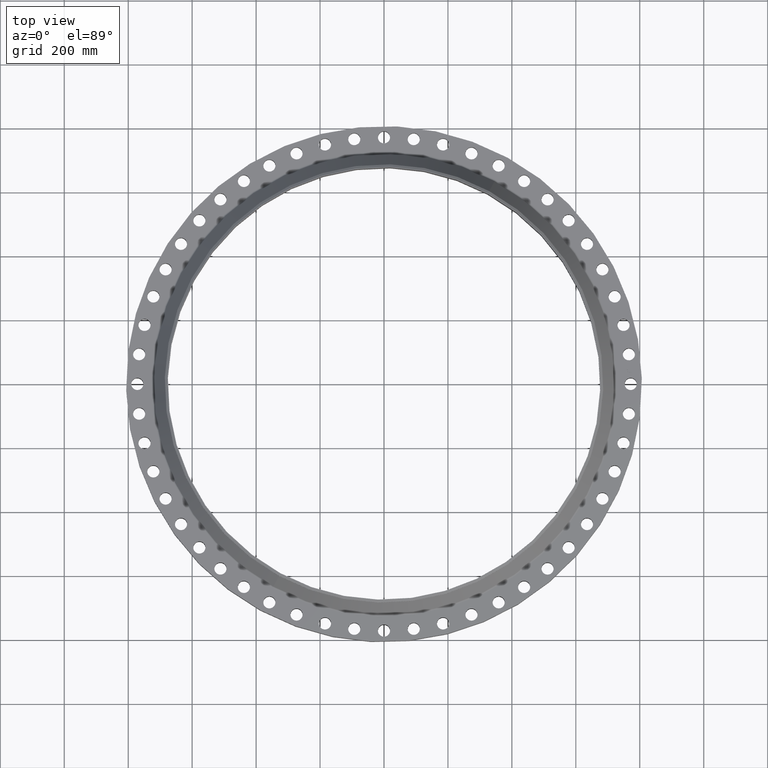
[diagram: clean part render]
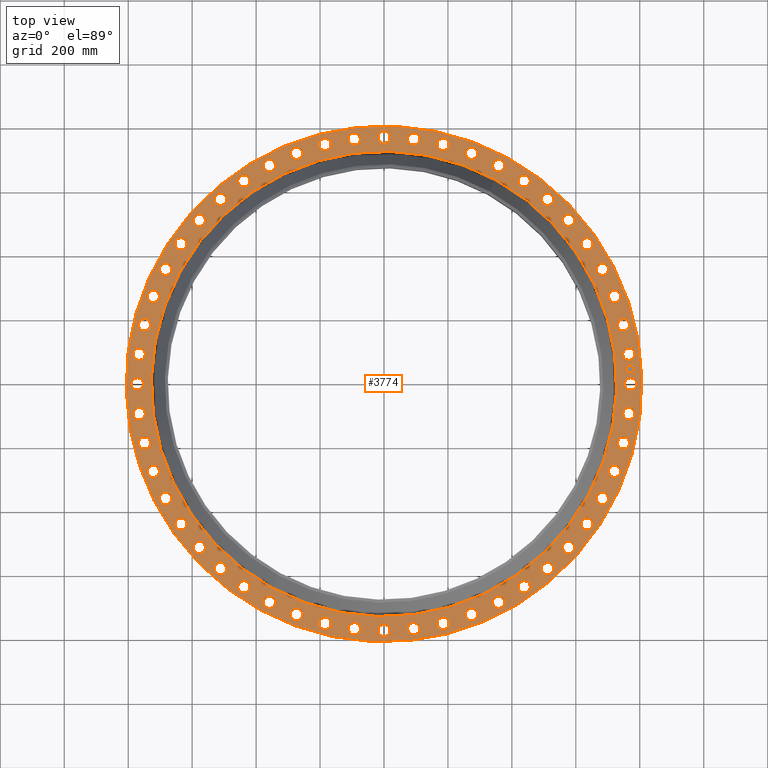
[diagram: same view with one face highlighted and labeled with its STEP entity id]
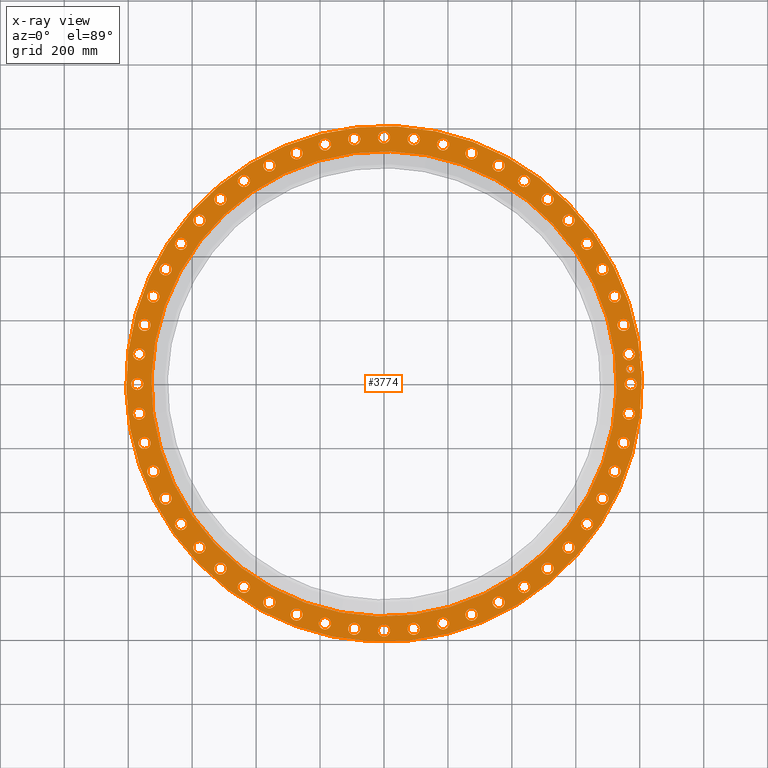
[diagram: x-ray of the same camera — body ghosted, the highlighted face saturated]
A machine part, top view. The second image highlights one B-rep face of the part: STEP entity #3774.
The next image is the same camera in x-ray: the body ghosted, the highlighted face saturated — about 0% of this face is hidden behind the body in this view.
In plain terms, the highlighted planar face has unit normal (0, 0, -1).
Its self-contained STEP definition (entity closure, byte-faithful):
#65=AXIS2_PLACEMENT_3D('Circle Axis2P3D',#63,#64,$) ;
#82=AXIS2_PLACEMENT_3D('Circle Axis2P3D',#80,#81,$) ;
#115=AXIS2_PLACEMENT_3D('Circle Axis2P3D',#113,#114,$) ;
#139=AXIS2_PLACEMENT_3D('Circle Axis2P3D',#137,#138,$) ;
#156=AXIS2_PLACEMENT_3D('Circle Axis2P3D',#154,#155,$) ;
#191=AXIS2_PLACEMENT_3D('Circle Axis2P3D',#189,#190,$) ;
#1363=AXIS2_PLACEMENT_3D('Circle Axis2P3D',#1361,#1362,$) ;
#1375=AXIS2_PLACEMENT_3D('Circle Axis2P3D',#1373,#1374,$) ;
#1406=AXIS2_PLACEMENT_3D('Circle Axis2P3D',#1404,#1405,$) ;
#1418=AXIS2_PLACEMENT_3D('Circle Axis2P3D',#1416,#1417,$) ;
#1449=AXIS2_PLACEMENT_3D('Circle Axis2P3D',#1447,#1448,$) ;
#1461=AXIS2_PLACEMENT_3D('Circle Axis2P3D',#1459,#1460,$) ;
#1492=AXIS2_PLACEMENT_3D('Circle Axis2P3D',#1490,#1491,$) ;
#1504=AXIS2_PLACEMENT_3D('Circle Axis2P3D',#1502,#1503,$) ;
#1535=AXIS2_PLACEMENT_3D('Circle Axis2P3D',#1533,#1534,$) ;
#1547=AXIS2_PLACEMENT_3D('Circle Axis2P3D',#1545,#1546,$) ;
#1578=AXIS2_PLACEMENT_3D('Circle Axis2P3D',#1576,#1577,$) ;
#1590=AXIS2_PLACEMENT_3D('Circle Axis2P3D',#1588,#1589,$) ;
#1621=AXIS2_PLACEMENT_3D('Circle Axis2P3D',#1619,#1620,$) ;
#1633=AXIS2_PLACEMENT_3D('Circle Axis2P3D',#1631,#1632,$) ;
#1664=AXIS2_PLACEMENT_3D('Circle Axis2P3D',#1662,#1663,$) ;
#1676=AXIS2_PLACEMENT_3D('Circle Axis2P3D',#1674,#1675,$) ;
#1707=AXIS2_PLACEMENT_3D('Circle Axis2P3D',#1705,#1706,$) ;
#1719=AXIS2_PLACEMENT_3D('Circle Axis2P3D',#1717,#1718,$) ;
#1750=AXIS2_PLACEMENT_3D('Circle Axis2P3D',#1748,#1749,$) ;
#1762=AXIS2_PLACEMENT_3D('Circle Axis2P3D',#1760,#1761,$) ;
#1793=AXIS2_PLACEMENT_3D('Circle Axis2P3D',#1791,#1792,$) ;
#1805=AXIS2_PLACEMENT_3D('Circle Axis2P3D',#1803,#1804,$) ;
#1836=AXIS2_PLACEMENT_3D('Circle Axis2P3D',#1834,#1835,$) ;
#1848=AXIS2_PLACEMENT_3D('Circle Axis2P3D',#1846,#1847,$) ;
#1879=AXIS2_PLACEMENT_3D('Circle Axis2P3D',#1877,#1878,$) ;
#1891=AXIS2_PLACEMENT_3D('Circle Axis2P3D',#1889,#1890,$) ;
#1922=AXIS2_PLACEMENT_3D('Circle Axis2P3D',#1920,#1921,$) ;
#1934=AXIS2_PLACEMENT_3D('Circle Axis2P3D',#1932,#1933,$) ;
#1965=AXIS2_PLACEMENT_3D('Circle Axis2P3D',#1963,#1964,$) ;
#1977=AXIS2_PLACEMENT_3D('Circle Axis2P3D',#1975,#1976,$) ;
#2008=AXIS2_PLACEMENT_3D('Circle Axis2P3D',#2006,#2007,$) ;
#2020=AXIS2_PLACEMENT_3D('Circle Axis2P3D',#2018,#2019,$) ;
#2051=AXIS2_PLACEMENT_3D('Circle Axis2P3D',#2049,#2050,$) ;
#2063=AXIS2_PLACEMENT_3D('Circle Axis2P3D',#2061,#2062,$) ;
#2094=AXIS2_PLACEMENT_3D('Circle Axis2P3D',#2092,#2093,$) ;
#2106=AXIS2_PLACEMENT_3D('Circle Axis2P3D',#2104,#2105,$) ;
#2137=AXIS2_PLACEMENT_3D('Circle Axis2P3D',#2135,#2136,$) ;
#2149=AXIS2_PLACEMENT_3D('Circle Axis2P3D',#2147,#2148,$) ;
#2180=AXIS2_PLACEMENT_3D('Circle Axis2P3D',#2178,#2179,$) ;
#2192=AXIS2_PLACEMENT_3D('Circle Axis2P3D',#2190,#2191,$) ;
#2223=AXIS2_PLACEMENT_3D('Circle Axis2P3D',#2221,#2222,$) ;
#2235=AXIS2_PLACEMENT_3D('Circle Axis2P3D',#2233,#2234,$) ;
#2266=AXIS2_PLACEMENT_3D('Circle Axis2P3D',#2264,#2265,$) ;
#2278=AXIS2_PLACEMENT_3D('Circle Axis2P3D',#2276,#2277,$) ;
#2309=AXIS2_PLACEMENT_3D('Circle Axis2P3D',#2307,#2308,$) ;
#2321=AXIS2_PLACEMENT_3D('Circle Axis2P3D',#2319,#2320,$) ;
#2352=AXIS2_PLACEMENT_3D('Circle Axis2P3D',#2350,#2351,$) ;
#2364=AXIS2_PLACEMENT_3D('Circle Axis2P3D',#2362,#2363,$) ;
#2395=AXIS2_PLACEMENT_3D('Circle Axis2P3D',#2393,#2394,$) ;
#2407=AXIS2_PLACEMENT_3D('Circle Axis2P3D',#2405,#2406,$) ;
#2438=AXIS2_PLACEMENT_3D('Circle Axis2P3D',#2436,#2437,$) ;
#2450=AXIS2_PLACEMENT_3D('Circle Axis2P3D',#2448,#2449,$) ;
#2481=AXIS2_PLACEMENT_3D('Circle Axis2P3D',#2479,#2480,$) ;
#2493=AXIS2_PLACEMENT_3D('Circle Axis2P3D',#2491,#2492,$) ;
#2524=AXIS2_PLACEMENT_3D('Circle Axis2P3D',#2522,#2523,$) ;
#2536=AXIS2_PLACEMENT_3D('Circle Axis2P3D',#2534,#2535,$) ;
#2567=AXIS2_PLACEMENT_3D('Circle Axis2P3D',#2565,#2566,$) ;
#2579=AXIS2_PLACEMENT_3D('Circle Axis2P3D',#2577,#2578,$) ;
#2610=AXIS2_PLACEMENT_3D('Circle Axis2P3D',#2608,#2609,$) ;
#2622=AXIS2_PLACEMENT_3D('Circle Axis2P3D',#2620,#2621,$) ;
#2653=AXIS2_PLACEMENT_3D('Circle Axis2P3D',#2651,#2652,$) ;
#2665=AXIS2_PLACEMENT_3D('Circle Axis2P3D',#2663,#2664,$) ;
#2696=AXIS2_PLACEMENT_3D('Circle Axis2P3D',#2694,#2695,$) ;
#2708=AXIS2_PLACEMENT_3D('Circle Axis2P3D',#2706,#2707,$) ;
#2739=AXIS2_PLACEMENT_3D('Circle Axis2P3D',#2737,#2738,$) ;
#2751=AXIS2_PLACEMENT_3D('Circle Axis2P3D',#2749,#2750,$) ;
#2782=AXIS2_PLACEMENT_3D('Circle Axis2P3D',#2780,#2781,$) ;
#2794=AXIS2_PLACEMENT_3D('Circle Axis2P3D',#2792,#2793,$) ;
#2825=AXIS2_PLACEMENT_3D('Circle Axis2P3D',#2823,#2824,$) ;
#2837=AXIS2_PLACEMENT_3D('Circle Axis2P3D',#2835,#2836,$) ;
#2868=AXIS2_PLACEMENT_3D('Circle Axis2P3D',#2866,#2867,$) ;
#2880=AXIS2_PLACEMENT_3D('Circle Axis2P3D',#2878,#2879,$) ;
#2911=AXIS2_PLACEMENT_3D('Circle Axis2P3D',#2909,#2910,$) ;
#2923=AXIS2_PLACEMENT_3D('Circle Axis2P3D',#2921,#2922,$) ;
#2954=AXIS2_PLACEMENT_3D('Circle Axis2P3D',#2952,#2953,$) ;
#2966=AXIS2_PLACEMENT_3D('Circle Axis2P3D',#2964,#2965,$) ;
#2997=AXIS2_PLACEMENT_3D('Circle Axis2P3D',#2995,#2996,$) ;
#3009=AXIS2_PLACEMENT_3D('Circle Axis2P3D',#3007,#3008,$) ;
#3040=AXIS2_PLACEMENT_3D('Circle Axis2P3D',#3038,#3039,$) ;
#3052=AXIS2_PLACEMENT_3D('Circle Axis2P3D',#3050,#3051,$) ;
#3083=AXIS2_PLACEMENT_3D('Circle Axis2P3D',#3081,#3082,$) ;
#3095=AXIS2_PLACEMENT_3D('Circle Axis2P3D',#3093,#3094,$) ;
#3126=AXIS2_PLACEMENT_3D('Circle Axis2P3D',#3124,#3125,$) ;
#3138=AXIS2_PLACEMENT_3D('Circle Axis2P3D',#3136,#3137,$) ;
#3169=AXIS2_PLACEMENT_3D('Circle Axis2P3D',#3167,#3168,$) ;
#3181=AXIS2_PLACEMENT_3D('Circle Axis2P3D',#3179,#3180,$) ;
#3212=AXIS2_PLACEMENT_3D('Circle Axis2P3D',#3210,#3211,$) ;
#3224=AXIS2_PLACEMENT_3D('Circle Axis2P3D',#3222,#3223,$) ;
#3255=AXIS2_PLACEMENT_3D('Circle Axis2P3D',#3253,#3254,$) ;
#3267=AXIS2_PLACEMENT_3D('Circle Axis2P3D',#3265,#3266,$) ;
#3298=AXIS2_PLACEMENT_3D('Circle Axis2P3D',#3296,#3297,$) ;
#3310=AXIS2_PLACEMENT_3D('Circle Axis2P3D',#3308,#3309,$) ;
#3341=AXIS2_PLACEMENT_3D('Circle Axis2P3D',#3339,#3340,$) ;
#3353=AXIS2_PLACEMENT_3D('Circle Axis2P3D',#3351,#3352,$) ;
#3384=AXIS2_PLACEMENT_3D('Circle Axis2P3D',#3382,#3383,$) ;
#3396=AXIS2_PLACEMENT_3D('Circle Axis2P3D',#3394,#3395,$) ;
#3427=AXIS2_PLACEMENT_3D('Circle Axis2P3D',#3425,#3426,$) ;
#3439=AXIS2_PLACEMENT_3D('Circle Axis2P3D',#3437,#3438,$) ;
#3470=AXIS2_PLACEMENT_3D('Circle Axis2P3D',#3468,#3469,$) ;
#3482=AXIS2_PLACEMENT_3D('Circle Axis2P3D',#3480,#3481,$) ;
#3513=AXIS2_PLACEMENT_3D('Circle Axis2P3D',#3511,#3512,$) ;
#3525=AXIS2_PLACEMENT_3D('Circle Axis2P3D',#3523,#3524,$) ;
#3538=AXIS2_PLACEMENT_3D('Plane Axis2P3D',#3535,#3536,#3537) ;
#3758=AXIS2_PLACEMENT_3D('Circle Axis2P3D',#3756,#3757,$) ;
#3767=AXIS2_PLACEMENT_3D('Circle Axis2P3D',#3765,#3766,$) ;
#46=CARTESIAN_POINT('Vertex',(29.7168130787,0.359569153955,4.50000000002)) ;
#60=CARTESIAN_POINT('Vertex',(31.0331869215,-0.359569153955,4.50000000002)) ;
#63=CARTESIAN_POINT('Axis2P3D Location',(30.3750000001,0.,4.50000000002)) ;
#80=CARTESIAN_POINT('Axis2P3D Location',(30.3750000001,0.,4.50000000002)) ;
#110=CARTESIAN_POINT('Vertex',(-15.2217608507,-27.8632463401,4.50000000002)) ;
#113=CARTESIAN_POINT('Axis2P3D Location',(0.,0.,4.50000000002)) ;
#117=CARTESIAN_POINT('Vertex',(15.2217608507,27.8632463401,4.50000000002)) ;
#137=CARTESIAN_POINT('Axis2P3D Location',(0.,0.,4.50000000002)) ;
#154=CARTESIAN_POINT('Axis2P3D Location',(0.,0.,4.50000000002)) ;
#158=CARTESIAN_POINT('Vertex',(13.7350741192,25.1418845319,4.50000000002)) ;
#160=CARTESIAN_POINT('Vertex',(-13.7350741192,-25.1418845319,4.50000000002)) ;
#189=CARTESIAN_POINT('Axis2P3D Location',(0.,0.,4.50000000002)) ;
#1351=CARTESIAN_POINT('Vertex',(-29.5434853253,3.22501850629,4.50000000002)) ;
#1358=CARTESIAN_POINT('Vertex',(-30.7635787764,4.09758481925,4.50000000002)) ;
#1361=CARTESIAN_POINT('Axis2P3D Location',(-30.1535320508,3.66130166277,4.50000000002)) ;
#1373=CARTESIAN_POINT('Axis2P3D Location',(-30.1535320508,3.66130166277,4.50000000002)) ;
#1394=CARTESIAN_POINT('Vertex',(28.9393470297,-6.76257813461,4.50000000002)) ;
#1401=CARTESIAN_POINT('Vertex',(30.0453683792,-7.77584847092,4.50000000002)) ;
#1404=CARTESIAN_POINT('Axis2P3D Location',(29.4923577044,-7.26921330276,4.50000000002)) ;
#1416=CARTESIAN_POINT('Axis2P3D Location',(29.4923577044,-7.26921330276,4.50000000002)) ;
#1437=CARTESIAN_POINT('Vertex',(-28.9393470297,6.76257813461,4.50000000002)) ;
#1444=CARTESIAN_POINT('Vertex',(-30.0453683792,7.77584847092,4.50000000002)) ;
#1447=CARTESIAN_POINT('Axis2P3D Location',(-29.4923577044,7.26921330276,4.50000000002)) ;
#1459=CARTESIAN_POINT('Axis2P3D Location',(-29.4923577044,7.26921330276,4.50000000002)) ;
#1480=CARTESIAN_POINT('Vertex',(27.9132078887,-10.2015241457,4.50000000002)) ;
#1487=CARTESIAN_POINT('Vertex',(28.8890288547,-11.3407227422,4.50000000002)) ;
#1490=CARTESIAN_POINT('Axis2P3D Location',(28.4011183717,-10.771123444,4.50000000002)) ;
#1502=CARTESIAN_POINT('Axis2P3D Location',(28.4011183717,-10.771123444,4.50000000002)) ;
#1523=CARTESIAN_POINT('Vertex',(-27.9132078887,10.2015241457,4.50000000002)) ;
#1530=CARTESIAN_POINT('Vertex',(-28.8890288547,11.3407227422,4.50000000002)) ;
#1533=CARTESIAN_POINT('Axis2P3D Location',(-28.4011183717,10.771123444,4.50000000002)) ;
#1545=CARTESIAN_POINT('Axis2P3D Location',(-28.4011183717,10.771123444,4.50000000002)) ;
#1566=CARTESIAN_POINT('Vertex',(26.4800313215,-13.491708963,4.50000000002)) ;
#1573=CARTESIAN_POINT('Vertex',(27.3114222371,-14.7402237388,4.50000000002)) ;
#1576=CARTESIAN_POINT('Axis2P3D Location',(26.8957267793,-14.1159663509,4.50000000002)) ;
#1588=CARTESIAN_POINT('Axis2P3D Location',(26.8957267793,-14.1159663509,4.50000000002)) ;
#1609=CARTESIAN_POINT('Vertex',(-26.4800313215,13.491708963,4.50000000002)) ;
#1616=CARTESIAN_POINT('Vertex',(-27.3114222371,14.7402237388,4.50000000002)) ;
#1619=CARTESIAN_POINT('Axis2P3D Location',(-26.8957267793,14.1159663509,4.50000000002)) ;
#1631=CARTESIAN_POINT('Axis2P3D Location',(-26.8957267793,14.1159663509,4.50000000002)) ;
#1652=CARTESIAN_POINT('Vertex',(24.6607162699,-16.5851542828,4.50000000002)) ;
#1659=CARTESIAN_POINT('Vertex',(25.3355535833,-17.9247790812,4.50000000002)) ;
#1662=CARTESIAN_POINT('Axis2P3D Location',(24.9981349266,-17.254966682,4.50000000002)) ;
#1674=CARTESIAN_POINT('Axis2P3D Location',(24.9981349266,-17.254966682,4.50000000002)) ;
#1695=CARTESIAN_POINT('Vertex',(-24.6607162699,16.5851542828,4.50000000002)) ;
#1702=CARTESIAN_POINT('Vertex',(-25.3355535833,17.9247790812,4.50000000002)) ;
#1705=CARTESIAN_POINT('Axis2P3D Location',(-24.9981349266,17.254966682,4.50000000002)) ;
#1717=CARTESIAN_POINT('Axis2P3D Location',(-24.9981349266,17.254966682,4.50000000002)) ;
#1738=CARTESIAN_POINT('Vertex',(22.481792444,-19.4367507067,4.50000000002)) ;
#1745=CARTESIAN_POINT('Vertex',(22.9902355076,-20.8479507815,4.50000000002)) ;
#1748=CARTESIAN_POINT('Axis2P3D Location',(22.7360139758,-20.1423507441,4.50000000002)) ;
#1760=CARTESIAN_POINT('Axis2P3D Location',(22.7360139758,-20.1423507441,4.50000000002)) ;
#1781=CARTESIAN_POINT('Vertex',(-22.481792444,19.4367507067,4.50000000002)) ;
#1788=CARTESIAN_POINT('Vertex',(-22.9902355076,20.8479507815,4.50000000002)) ;
#1791=CARTESIAN_POINT('Axis2P3D Location',(-22.7360139758,20.1423507441,4.50000000002)) ;
#1803=CARTESIAN_POINT('Axis2P3D Location',(-22.7360139758,20.1423507441,4.50000000002)) ;
#1824=CARTESIAN_POINT('Vertex',(19.9750334596,-22.0049155376,4.50000000002)) ;
#1831=CARTESIAN_POINT('Vertex',(20.3096680287,-23.467112414,4.50000000002)) ;
#1834=CARTESIAN_POINT('Axis2P3D Location',(20.1423507441,-22.7360139758,4.50000000002)) ;
#1846=CARTESIAN_POINT('Axis2P3D Location',(20.1423507441,-22.7360139758,4.50000000002)) ;
#1867=CARTESIAN_POINT('Vertex',(-19.9750334596,22.0049155376,4.50000000002)) ;
#1874=CARTESIAN_POINT('Vertex',(-20.3096680287,23.467112414,4.50000000002)) ;
#1877=CARTESIAN_POINT('Axis2P3D Location',(-20.1423507441,22.7360139758,4.50000000002)) ;
#1889=CARTESIAN_POINT('Axis2P3D Location',(-20.1423507441,22.7360139758,4.50000000002)) ;
#1910=CARTESIAN_POINT('Vertex',(17.1769935076,-24.2521991492,4.50000000002)) ;
#1917=CARTESIAN_POINT('Vertex',(17.3329398565,-25.7440707041,4.50000000002)) ;
#1920=CARTESIAN_POINT('Axis2P3D Location',(17.254966682,-24.9981349266,4.50000000002)) ;
#1932=CARTESIAN_POINT('Axis2P3D Location',(17.254966682,-24.9981349266,4.50000000002)) ;
#1953=CARTESIAN_POINT('Vertex',(-17.1769935076,24.2521991492,4.50000000002)) ;
#1960=CARTESIAN_POINT('Vertex',(-17.3329398565,25.7440707041,4.50000000002)) ;
#1963=CARTESIAN_POINT('Axis2P3D Location',(-17.254966682,24.9981349266,4.50000000002)) ;
#1975=CARTESIAN_POINT('Axis2P3D Location',(-17.254966682,24.9981349266,4.50000000002)) ;
#1996=CARTESIAN_POINT('Vertex',(14.128474311,-26.145831086,4.50000000002)) ;
#2003=CARTESIAN_POINT('Vertex',(14.1034583908,-27.6456224727,4.50000000002)) ;
#2006=CARTESIAN_POINT('Axis2P3D Location',(14.1159663509,-26.8957267793,4.50000000002)) ;
#2018=CARTESIAN_POINT('Axis2P3D Location',(14.1159663509,-26.8957267793,4.50000000002)) ;
#2039=CARTESIAN_POINT('Vertex',(-14.128474311,26.145831086,4.50000000002)) ;
#2046=CARTESIAN_POINT('Vertex',(-14.1034583908,27.6456224727,4.50000000002)) ;
#2049=CARTESIAN_POINT('Axis2P3D Location',(-14.1159663509,26.8957267793,4.50000000002)) ;
#2061=CARTESIAN_POINT('Axis2P3D Location',(-14.1159663509,26.8957267793,4.50000000002)) ;
#2082=CARTESIAN_POINT('Vertex',(10.8739301444,-27.6581979302,4.50000000002)) ;
#2089=CARTESIAN_POINT('Vertex',(10.6683167436,-29.1440388132,4.50000000002)) ;
#2092=CARTESIAN_POINT('Axis2P3D Location',(10.771123444,-28.4011183717,4.50000000002)) ;
#2104=CARTESIAN_POINT('Axis2P3D Location',(10.771123444,-28.4011183717,4.50000000002)) ;
#2125=CARTESIAN_POINT('Vertex',(-10.8739301444,27.6581979302,4.50000000002)) ;
#2132=CARTESIAN_POINT('Vertex',(-10.6683167436,29.1440388132,4.50000000002)) ;
#2135=CARTESIAN_POINT('Axis2P3D Location',(-10.771123444,28.4011183717,4.50000000002)) ;
#2147=CARTESIAN_POINT('Axis2P3D Location',(-10.771123444,28.4011183717,4.50000000002)) ;
#2168=CARTESIAN_POINT('Vertex',(7.46081959027,-28.7672459678,4.50000000002)) ;
#2175=CARTESIAN_POINT('Vertex',(7.07760701526,-30.2174694411,4.50000000002)) ;
#2178=CARTESIAN_POINT('Axis2P3D Location',(7.26921330276,-29.4923577044,4.50000000002)) ;
#2190=CARTESIAN_POINT('Axis2P3D Location',(7.26921330276,-29.4923577044,4.50000000002)) ;
#2211=CARTESIAN_POINT('Vertex',(-7.46081959027,28.7672459678,4.50000000002)) ;
#2218=CARTESIAN_POINT('Vertex',(-7.07760701526,30.2174694411,4.50000000002)) ;
#2221=CARTESIAN_POINT('Axis2P3D Location',(-7.26921330276,29.4923577044,4.50000000002)) ;
#2233=CARTESIAN_POINT('Axis2P3D Location',(-7.26921330276,29.4923577044,4.50000000002)) ;
#2254=CARTESIAN_POINT('Vertex',(3.93891348626,-29.456802781,4.50000000002)) ;
#2261=CARTESIAN_POINT('Vertex',(3.38368983928,-30.8502613207,4.50000000002)) ;
#2264=CARTESIAN_POINT('Axis2P3D Location',(3.66130166277,-30.1535320508,4.50000000002)) ;
#2276=CARTESIAN_POINT('Axis2P3D Location',(3.66130166277,-30.1535320508,4.50000000002)) ;
#2297=CARTESIAN_POINT('Vertex',(-3.93891348626,29.456802781,4.50000000002)) ;
#2304=CARTESIAN_POINT('Vertex',(-3.38368983928,30.8502613207,4.50000000002)) ;
#2307=CARTESIAN_POINT('Axis2P3D Location',(-3.66130166277,30.1535320508,4.50000000002)) ;
#2319=CARTESIAN_POINT('Axis2P3D Location',(-3.66130166277,30.1535320508,4.50000000002)) ;
#2340=CARTESIAN_POINT('Vertex',(0.359569153955,-29.7168130787,4.50000000002)) ;
#2347=CARTESIAN_POINT('Vertex',(-0.359569153955,-31.0331869215,4.50000000002)) ;
#2350=CARTESIAN_POINT('Axis2P3D Location',(8.60453720084E-015,-30.3750000001,4.50000000002)) ;
#2362=CARTESIAN_POINT('Axis2P3D Location',(8.60453720084E-015,-30.3750000001,4.50000000002)) ;
#2383=CARTESIAN_POINT('Vertex',(-0.359569153955,29.7168130787,4.50000000002)) ;
#2390=CARTESIAN_POINT('Vertex',(0.359569153955,31.0331869215,4.50000000002)) ;
#2393=CARTESIAN_POINT('Axis2P3D Location',(-1.10393722582E-015,30.3750000001,4.50000000002)) ;
#2405=CARTESIAN_POINT('Axis2P3D Location',(-1.10393722582E-015,30.3750000001,4.50000000002)) ;
#2426=CARTESIAN_POINT('Vertex',(-3.22501850629,-29.5434853253,4.50000000002)) ;
#2433=CARTESIAN_POINT('Vertex',(-4.09758481925,-30.7635787764,4.50000000002)) ;
#2436=CARTESIAN_POINT('Axis2P3D Location',(-3.66130166277,-30.1535320508,4.50000000002)) ;
#2448=CARTESIAN_POINT('Axis2P3D Location',(-3.66130166277,-30.1535320508,4.50000000002)) ;
#2469=CARTESIAN_POINT('Vertex',(3.22501850629,29.5434853253,4.50000000002)) ;
#2476=CARTESIAN_POINT('Vertex',(4.09758481925,30.7635787764,4.50000000002)) ;
#2479=CARTESIAN_POINT('Axis2P3D Location',(3.66130166277,30.1535320508,4.50000000002)) ;
#2491=CARTESIAN_POINT('Axis2P3D Location',(3.66130166277,30.1535320508,4.50000000002)) ;
#2512=CARTESIAN_POINT('Vertex',(-6.76257813461,-28.9393470297,4.50000000002)) ;
#2519=CARTESIAN_POINT('Vertex',(-7.77584847092,-30.0453683792,4.50000000002)) ;
#2522=CARTESIAN_POINT('Axis2P3D Location',(-7.26921330276,-29.4923577044,4.50000000002)) ;
#2534=CARTESIAN_POINT('Axis2P3D Location',(-7.26921330276,-29.4923577044,4.50000000002)) ;
#2555=CARTESIAN_POINT('Vertex',(6.76257813461,28.9393470297,4.50000000002)) ;
#2562=CARTESIAN_POINT('Vertex',(7.77584847092,30.0453683792,4.50000000002)) ;
#2565=CARTESIAN_POINT('Axis2P3D Location',(7.26921330276,29.4923577044,4.50000000002)) ;
#2577=CARTESIAN_POINT('Axis2P3D Location',(7.26921330276,29.4923577044,4.50000000002)) ;
#2598=CARTESIAN_POINT('Vertex',(-10.2015241457,-27.9132078887,4.50000000002)) ;
#2605=CARTESIAN_POINT('Vertex',(-11.3407227422,-28.8890288547,4.50000000002)) ;
#2608=CARTESIAN_POINT('Axis2P3D Location',(-10.771123444,-28.4011183717,4.50000000002)) ;
#2620=CARTESIAN_POINT('Axis2P3D Location',(-10.771123444,-28.4011183717,4.50000000002)) ;
#2641=CARTESIAN_POINT('Vertex',(10.2015241457,27.9132078887,4.50000000002)) ;
#2648=CARTESIAN_POINT('Vertex',(11.3407227422,28.8890288547,4.50000000002)) ;
#2651=CARTESIAN_POINT('Axis2P3D Location',(10.771123444,28.4011183717,4.50000000002)) ;
#2663=CARTESIAN_POINT('Axis2P3D Location',(10.771123444,28.4011183717,4.50000000002)) ;
#2684=CARTESIAN_POINT('Vertex',(-13.491708963,-26.4800313215,4.50000000002)) ;
#2691=CARTESIAN_POINT('Vertex',(-14.7402237388,-27.3114222371,4.50000000002)) ;
#2694=CARTESIAN_POINT('Axis2P3D Location',(-14.1159663509,-26.8957267793,4.50000000002)) ;
#2706=CARTESIAN_POINT('Axis2P3D Location',(-14.1159663509,-26.8957267793,4.50000000002)) ;
#2727=CARTESIAN_POINT('Vertex',(13.491708963,26.4800313215,4.50000000002)) ;
#2734=CARTESIAN_POINT('Vertex',(14.7402237388,27.3114222371,4.50000000002)) ;
#2737=CARTESIAN_POINT('Axis2P3D Location',(14.1159663509,26.8957267793,4.50000000002)) ;
#2749=CARTESIAN_POINT('Axis2P3D Location',(14.1159663509,26.8957267793,4.50000000002)) ;
#2770=CARTESIAN_POINT('Vertex',(-16.5851542828,-24.6607162699,4.50000000002)) ;
#2777=CARTESIAN_POINT('Vertex',(-17.9247790812,-25.3355535833,4.50000000002)) ;
#2780=CARTESIAN_POINT('Axis2P3D Location',(-17.254966682,-24.9981349266,4.50000000002)) ;
#2792=CARTESIAN_POINT('Axis2P3D Location',(-17.254966682,-24.9981349266,4.50000000002)) ;
#2813=CARTESIAN_POINT('Vertex',(16.5851542828,24.6607162699,4.50000000002)) ;
#2820=CARTESIAN_POINT('Vertex',(17.9247790812,25.3355535833,4.50000000002)) ;
#2823=CARTESIAN_POINT('Axis2P3D Location',(17.254966682,24.9981349266,4.50000000002)) ;
#2835=CARTESIAN_POINT('Axis2P3D Location',(17.254966682,24.9981349266,4.50000000002)) ;
#2856=CARTESIAN_POINT('Vertex',(-19.4367507067,-22.481792444,4.50000000002)) ;
#2863=CARTESIAN_POINT('Vertex',(-20.8479507815,-22.9902355076,4.50000000002)) ;
#2866=CARTESIAN_POINT('Axis2P3D Location',(-20.1423507441,-22.7360139758,4.50000000002)) ;
#2878=CARTESIAN_POINT('Axis2P3D Location',(-20.1423507441,-22.7360139758,4.50000000002)) ;
#2899=CARTESIAN_POINT('Vertex',(19.4367507067,22.481792444,4.50000000002)) ;
#2906=CARTESIAN_POINT('Vertex',(20.8479507815,22.9902355076,4.50000000002)) ;
#2909=CARTESIAN_POINT('Axis2P3D Location',(20.1423507441,22.7360139758,4.50000000002)) ;
#2921=CARTESIAN_POINT('Axis2P3D Location',(20.1423507441,22.7360139758,4.50000000002)) ;
#2942=CARTESIAN_POINT('Vertex',(-22.0049155376,-19.9750334596,4.50000000002)) ;
#2949=CARTESIAN_POINT('Vertex',(-23.467112414,-20.3096680287,4.50000000002)) ;
#2952=CARTESIAN_POINT('Axis2P3D Location',(-22.7360139758,-20.1423507441,4.50000000002)) ;
#2964=CARTESIAN_POINT('Axis2P3D Location',(-22.7360139758,-20.1423507441,4.50000000002)) ;
#2985=CARTESIAN_POINT('Vertex',(22.0049155376,19.9750334596,4.50000000002)) ;
#2992=CARTESIAN_POINT('Vertex',(23.467112414,20.3096680287,4.50000000002)) ;
#2995=CARTESIAN_POINT('Axis2P3D Location',(22.7360139758,20.1423507441,4.50000000002)) ;
#3007=CARTESIAN_POINT('Axis2P3D Location',(22.7360139758,20.1423507441,4.50000000002)) ;
#3028=CARTESIAN_POINT('Vertex',(-24.2521991492,-17.1769935076,4.50000000002)) ;
#3035=CARTESIAN_POINT('Vertex',(-25.7440707041,-17.3329398565,4.50000000002)) ;
#3038=CARTESIAN_POINT('Axis2P3D Location',(-24.9981349266,-17.254966682,4.50000000002)) ;
#3050=CARTESIAN_POINT('Axis2P3D Location',(-24.9981349266,-17.254966682,4.50000000002)) ;
#3071=CARTESIAN_POINT('Vertex',(24.2521991492,17.1769935076,4.50000000002)) ;
#3078=CARTESIAN_POINT('Vertex',(25.7440707041,17.3329398565,4.50000000002)) ;
#3081=CARTESIAN_POINT('Axis2P3D Location',(24.9981349266,17.254966682,4.50000000002)) ;
#3093=CARTESIAN_POINT('Axis2P3D Location',(24.9981349266,17.254966682,4.50000000002)) ;
#3114=CARTESIAN_POINT('Vertex',(-26.145831086,-14.128474311,4.50000000002)) ;
#3121=CARTESIAN_POINT('Vertex',(-27.6456224727,-14.1034583908,4.50000000002)) ;
#3124=CARTESIAN_POINT('Axis2P3D Location',(-26.8957267793,-14.1159663509,4.50000000002)) ;
#3136=CARTESIAN_POINT('Axis2P3D Location',(-26.8957267793,-14.1159663509,4.50000000002)) ;
#3157=CARTESIAN_POINT('Vertex',(26.145831086,14.128474311,4.50000000002)) ;
#3164=CARTESIAN_POINT('Vertex',(27.6456224727,14.1034583908,4.50000000002)) ;
#3167=CARTESIAN_POINT('Axis2P3D Location',(26.8957267793,14.1159663509,4.50000000002)) ;
#3179=CARTESIAN_POINT('Axis2P3D Location',(26.8957267793,14.1159663509,4.50000000002)) ;
#3200=CARTESIAN_POINT('Vertex',(-27.6581979302,-10.8739301444,4.50000000002)) ;
#3207=CARTESIAN_POINT('Vertex',(-29.1440388132,-10.6683167436,4.50000000002)) ;
#3210=CARTESIAN_POINT('Axis2P3D Location',(-28.4011183717,-10.771123444,4.50000000002)) ;
#3222=CARTESIAN_POINT('Axis2P3D Location',(-28.4011183717,-10.771123444,4.50000000002)) ;
#3243=CARTESIAN_POINT('Vertex',(27.6581979302,10.8739301444,4.50000000002)) ;
#3250=CARTESIAN_POINT('Vertex',(29.1440388132,10.6683167436,4.50000000002)) ;
#3253=CARTESIAN_POINT('Axis2P3D Location',(28.4011183717,10.771123444,4.50000000002)) ;
#3265=CARTESIAN_POINT('Axis2P3D Location',(28.4011183717,10.771123444,4.50000000002)) ;
#3286=CARTESIAN_POINT('Vertex',(-28.7672459678,-7.46081959027,4.50000000002)) ;
#3293=CARTESIAN_POINT('Vertex',(-30.2174694411,-7.07760701526,4.50000000002)) ;
#3296=CARTESIAN_POINT('Axis2P3D Location',(-29.4923577044,-7.26921330276,4.50000000002)) ;
#3308=CARTESIAN_POINT('Axis2P3D Location',(-29.4923577044,-7.26921330276,4.50000000002)) ;
#3329=CARTESIAN_POINT('Vertex',(28.7672459678,7.46081959027,4.50000000002)) ;
#3336=CARTESIAN_POINT('Vertex',(30.2174694411,7.07760701526,4.50000000002)) ;
#3339=CARTESIAN_POINT('Axis2P3D Location',(29.4923577044,7.26921330276,4.50000000002)) ;
#3351=CARTESIAN_POINT('Axis2P3D Location',(29.4923577044,7.26921330276,4.50000000002)) ;
#3372=CARTESIAN_POINT('Vertex',(-29.456802781,-3.93891348626,4.50000000002)) ;
#3379=CARTESIAN_POINT('Vertex',(-30.8502613207,-3.38368983928,4.50000000002)) ;
#3382=CARTESIAN_POINT('Axis2P3D Location',(-30.1535320508,-3.66130166277,4.50000000002)) ;
#3394=CARTESIAN_POINT('Axis2P3D Location',(-30.1535320508,-3.66130166277,4.50000000002)) ;
#3415=CARTESIAN_POINT('Vertex',(29.456802781,3.93891348626,4.50000000002)) ;
#3422=CARTESIAN_POINT('Vertex',(30.8502613207,3.38368983928,4.50000000002)) ;
#3425=CARTESIAN_POINT('Axis2P3D Location',(30.1535320508,3.66130166277,4.50000000002)) ;
#3437=CARTESIAN_POINT('Axis2P3D Location',(30.1535320508,3.66130166277,4.50000000002)) ;
#3458=CARTESIAN_POINT('Vertex',(-29.7168130787,-0.359569153955,4.50000000002)) ;
#3465=CARTESIAN_POINT('Vertex',(-31.0331869215,0.359569153955,4.50000000002)) ;
#3468=CARTESIAN_POINT('Axis2P3D Location',(-30.3750000001,-1.72090744017E-014,4.50000000002)) ;
#3480=CARTESIAN_POINT('Axis2P3D Location',(-30.3750000001,-1.72090744017E-014,4.50000000002)) ;
#3501=CARTESIAN_POINT('Vertex',(29.5434853253,-3.22501850629,4.50000000002)) ;
#3508=CARTESIAN_POINT('Vertex',(30.7635787764,-4.09758481925,4.50000000002)) ;
#3511=CARTESIAN_POINT('Axis2P3D Location',(30.1535320508,-3.66130166277,4.50000000002)) ;
#3523=CARTESIAN_POINT('Axis2P3D Location',(30.1535320508,-3.66130166277,4.50000000002)) ;
#3535=CARTESIAN_POINT('Axis2P3D Location',(0.,31.7500000001,4.50000000002)) ;
#3756=CARTESIAN_POINT('Axis2P3D Location',(30.3195824597,1.83399685921,4.50000000002)) ;
#3760=CARTESIAN_POINT('Vertex',(30.2893932801,2.33308349241,4.50000000002)) ;
#3762=CARTESIAN_POINT('Vertex',(30.3497716392,1.33491022601,4.50000000002)) ;
#3765=CARTESIAN_POINT('Axis2P3D Location',(30.3195824597,1.83399685921,4.50000000002)) ;
#64=DIRECTION('Axis2P3D Direction',(0.,-0.,-0.0393700787402)) ;
#81=DIRECTION('Axis2P3D Direction',(0.,-0.,-0.0393700787402)) ;
#114=DIRECTION('Axis2P3D Direction',(0.,0.,-0.0393700787402)) ;
#138=DIRECTION('Axis2P3D Direction',(0.,0.,-0.0393700787402)) ;
#155=DIRECTION('Axis2P3D Direction',(0.,0.,-0.0393700787402)) ;
#190=DIRECTION('Axis2P3D Direction',(0.,0.,-0.0393700787402)) ;
#1362=DIRECTION('Axis2P3D Direction',(0.,0.,-0.0393700787402)) ;
#1374=DIRECTION('Axis2P3D Direction',(0.,0.,-0.0393700787402)) ;
#1405=DIRECTION('Axis2P3D Direction',(0.,-0.,-0.0393700787402)) ;
#1417=DIRECTION('Axis2P3D Direction',(0.,-0.,-0.0393700787402)) ;
#1448=DIRECTION('Axis2P3D Direction',(0.,0.,-0.0393700787402)) ;
#1460=DIRECTION('Axis2P3D Direction',(0.,0.,-0.0393700787402)) ;
#1491=DIRECTION('Axis2P3D Direction',(0.,-0.,-0.0393700787402)) ;
#1503=DIRECTION('Axis2P3D Direction',(0.,-0.,-0.0393700787402)) ;
#1534=DIRECTION('Axis2P3D Direction',(0.,0.,-0.0393700787402)) ;
#1546=DIRECTION('Axis2P3D Direction',(0.,0.,-0.0393700787402)) ;
#1577=DIRECTION('Axis2P3D Direction',(0.,-0.,-0.0393700787402)) ;
#1589=DIRECTION('Axis2P3D Direction',(0.,-0.,-0.0393700787402)) ;
#1620=DIRECTION('Axis2P3D Direction',(0.,0.,-0.0393700787402)) ;
#1632=DIRECTION('Axis2P3D Direction',(0.,0.,-0.0393700787402)) ;
#1663=DIRECTION('Axis2P3D Direction',(0.,-0.,-0.0393700787402)) ;
#1675=DIRECTION('Axis2P3D Direction',(0.,-0.,-0.0393700787402)) ;
#1706=DIRECTION('Axis2P3D Direction',(0.,0.,-0.0393700787402)) ;
#1718=DIRECTION('Axis2P3D Direction',(0.,0.,-0.0393700787402)) ;
#1749=DIRECTION('Axis2P3D Direction',(0.,-0.,-0.0393700787402)) ;
#1761=DIRECTION('Axis2P3D Direction',(0.,-0.,-0.0393700787402)) ;
#1792=DIRECTION('Axis2P3D Direction',(0.,0.,-0.0393700787402)) ;
#1804=DIRECTION('Axis2P3D Direction',(0.,0.,-0.0393700787402)) ;
#1835=DIRECTION('Axis2P3D Direction',(0.,-0.,-0.0393700787402)) ;
#1847=DIRECTION('Axis2P3D Direction',(0.,-0.,-0.0393700787402)) ;
#1878=DIRECTION('Axis2P3D Direction',(0.,0.,-0.0393700787402)) ;
#1890=DIRECTION('Axis2P3D Direction',(0.,0.,-0.0393700787402)) ;
#1921=DIRECTION('Axis2P3D Direction',(0.,-0.,-0.0393700787402)) ;
#1933=DIRECTION('Axis2P3D Direction',(0.,-0.,-0.0393700787402)) ;
#1964=DIRECTION('Axis2P3D Direction',(0.,0.,-0.0393700787402)) ;
#1976=DIRECTION('Axis2P3D Direction',(0.,0.,-0.0393700787402)) ;
#2007=DIRECTION('Axis2P3D Direction',(0.,-0.,-0.0393700787402)) ;
#2019=DIRECTION('Axis2P3D Direction',(0.,-0.,-0.0393700787402)) ;
#2050=DIRECTION('Axis2P3D Direction',(0.,0.,-0.0393700787402)) ;
#2062=DIRECTION('Axis2P3D Direction',(0.,0.,-0.0393700787402)) ;
#2093=DIRECTION('Axis2P3D Direction',(0.,-0.,-0.0393700787402)) ;
#2105=DIRECTION('Axis2P3D Direction',(0.,-0.,-0.0393700787402)) ;
#2136=DIRECTION('Axis2P3D Direction',(0.,0.,-0.0393700787402)) ;
#2148=DIRECTION('Axis2P3D Direction',(0.,0.,-0.0393700787402)) ;
#2179=DIRECTION('Axis2P3D Direction',(0.,-0.,-0.0393700787402)) ;
#2191=DIRECTION('Axis2P3D Direction',(0.,-0.,-0.0393700787402)) ;
#2222=DIRECTION('Axis2P3D Direction',(0.,0.,-0.0393700787402)) ;
#2234=DIRECTION('Axis2P3D Direction',(0.,0.,-0.0393700787402)) ;
#2265=DIRECTION('Axis2P3D Direction',(0.,-0.,-0.0393700787402)) ;
#2277=DIRECTION('Axis2P3D Direction',(0.,-0.,-0.0393700787402)) ;
#2308=DIRECTION('Axis2P3D Direction',(0.,0.,-0.0393700787402)) ;
#2320=DIRECTION('Axis2P3D Direction',(0.,0.,-0.0393700787402)) ;
#2351=DIRECTION('Axis2P3D Direction',(0.,-0.,-0.0393700787402)) ;
#2363=DIRECTION('Axis2P3D Direction',(0.,-0.,-0.0393700787402)) ;
#2394=DIRECTION('Axis2P3D Direction',(0.,0.,-0.0393700787402)) ;
#2406=DIRECTION('Axis2P3D Direction',(0.,0.,-0.0393700787402)) ;
#2437=DIRECTION('Axis2P3D Direction',(-0.,0.,-0.0393700787402)) ;
#2449=DIRECTION('Axis2P3D Direction',(-0.,0.,-0.0393700787402)) ;
#2480=DIRECTION('Axis2P3D Direction',(0.,0.,-0.0393700787402)) ;
#2492=DIRECTION('Axis2P3D Direction',(0.,0.,-0.0393700787402)) ;
#2523=DIRECTION('Axis2P3D Direction',(-0.,0.,-0.0393700787402)) ;
#2535=DIRECTION('Axis2P3D Direction',(-0.,0.,-0.0393700787402)) ;
#2566=DIRECTION('Axis2P3D Direction',(0.,0.,-0.0393700787402)) ;
#2578=DIRECTION('Axis2P3D Direction',(0.,0.,-0.0393700787402)) ;
#2609=DIRECTION('Axis2P3D Direction',(-0.,0.,-0.0393700787402)) ;
#2621=DIRECTION('Axis2P3D Direction',(-0.,0.,-0.0393700787402)) ;
#2652=DIRECTION('Axis2P3D Direction',(0.,0.,-0.0393700787402)) ;
#2664=DIRECTION('Axis2P3D Direction',(0.,0.,-0.0393700787402)) ;
#2695=DIRECTION('Axis2P3D Direction',(-0.,0.,-0.0393700787402)) ;
#2707=DIRECTION('Axis2P3D Direction',(-0.,0.,-0.0393700787402)) ;
#2738=DIRECTION('Axis2P3D Direction',(0.,0.,-0.0393700787402)) ;
#2750=DIRECTION('Axis2P3D Direction',(0.,0.,-0.0393700787402)) ;
#2781=DIRECTION('Axis2P3D Direction',(-0.,0.,-0.0393700787402)) ;
#2793=DIRECTION('Axis2P3D Direction',(-0.,0.,-0.0393700787402)) ;
#2824=DIRECTION('Axis2P3D Direction',(0.,0.,-0.0393700787402)) ;
#2836=DIRECTION('Axis2P3D Direction',(0.,0.,-0.0393700787402)) ;
#2867=DIRECTION('Axis2P3D Direction',(-0.,0.,-0.0393700787402)) ;
#2879=DIRECTION('Axis2P3D Direction',(-0.,0.,-0.0393700787402)) ;
#2910=DIRECTION('Axis2P3D Direction',(0.,0.,-0.0393700787402)) ;
#2922=DIRECTION('Axis2P3D Direction',(0.,0.,-0.0393700787402)) ;
#2953=DIRECTION('Axis2P3D Direction',(-0.,0.,-0.0393700787402)) ;
#2965=DIRECTION('Axis2P3D Direction',(-0.,0.,-0.0393700787402)) ;
#2996=DIRECTION('Axis2P3D Direction',(0.,0.,-0.0393700787402)) ;
#3008=DIRECTION('Axis2P3D Direction',(0.,0.,-0.0393700787402)) ;
#3039=DIRECTION('Axis2P3D Direction',(-0.,0.,-0.0393700787402)) ;
#3051=DIRECTION('Axis2P3D Direction',(-0.,0.,-0.0393700787402)) ;
#3082=DIRECTION('Axis2P3D Direction',(0.,0.,-0.0393700787402)) ;
#3094=DIRECTION('Axis2P3D Direction',(0.,0.,-0.0393700787402)) ;
#3125=DIRECTION('Axis2P3D Direction',(-0.,0.,-0.0393700787402)) ;
#3137=DIRECTION('Axis2P3D Direction',(-0.,0.,-0.0393700787402)) ;
#3168=DIRECTION('Axis2P3D Direction',(0.,0.,-0.0393700787402)) ;
#3180=DIRECTION('Axis2P3D Direction',(0.,0.,-0.0393700787402)) ;
#3211=DIRECTION('Axis2P3D Direction',(-0.,0.,-0.0393700787402)) ;
#3223=DIRECTION('Axis2P3D Direction',(-0.,0.,-0.0393700787402)) ;
#3254=DIRECTION('Axis2P3D Direction',(0.,0.,-0.0393700787402)) ;
#3266=DIRECTION('Axis2P3D Direction',(0.,0.,-0.0393700787402)) ;
#3297=DIRECTION('Axis2P3D Direction',(-0.,0.,-0.0393700787402)) ;
#3309=DIRECTION('Axis2P3D Direction',(-0.,0.,-0.0393700787402)) ;
#3340=DIRECTION('Axis2P3D Direction',(0.,0.,-0.0393700787402)) ;
#3352=DIRECTION('Axis2P3D Direction',(0.,0.,-0.0393700787402)) ;
#3383=DIRECTION('Axis2P3D Direction',(-0.,0.,-0.0393700787402)) ;
#3395=DIRECTION('Axis2P3D Direction',(-0.,0.,-0.0393700787402)) ;
#3426=DIRECTION('Axis2P3D Direction',(0.,0.,-0.0393700787402)) ;
#3438=DIRECTION('Axis2P3D Direction',(0.,0.,-0.0393700787402)) ;
#3469=DIRECTION('Axis2P3D Direction',(-0.,0.,-0.0393700787402)) ;
#3481=DIRECTION('Axis2P3D Direction',(-0.,0.,-0.0393700787402)) ;
#3512=DIRECTION('Axis2P3D Direction',(0.,-0.,-0.0393700787402)) ;
#3524=DIRECTION('Axis2P3D Direction',(0.,-0.,-0.0393700787402)) ;
#3536=DIRECTION('Axis2P3D Direction',(0.,0.,-0.0393700787402)) ;
#3537=DIRECTION('Axis2P3D XDirection',(0.0393700787402,0.,0.)) ;
#3757=DIRECTION('Axis2P3D Direction',(0.,0.,-0.0393700787402)) ;
#3766=DIRECTION('Axis2P3D Direction',(0.,0.,-0.0393700787402)) ;
#3541=ORIENTED_EDGE('',*,*,#141,.F.) ;
#3542=ORIENTED_EDGE('',*,*,#119,.F.) ;
#3545=ORIENTED_EDGE('',*,*,#67,.T.) ;
#3546=ORIENTED_EDGE('',*,*,#84,.T.) ;
#3549=ORIENTED_EDGE('',*,*,#193,.T.) ;
#3550=ORIENTED_EDGE('',*,*,#162,.T.) ;
#3553=ORIENTED_EDGE('',*,*,#3527,.T.) ;
#3554=ORIENTED_EDGE('',*,*,#3515,.T.) ;
#3557=ORIENTED_EDGE('',*,*,#1420,.T.) ;
#3558=ORIENTED_EDGE('',*,*,#1408,.T.) ;
#3561=ORIENTED_EDGE('',*,*,#1506,.T.) ;
#3562=ORIENTED_EDGE('',*,*,#1494,.T.) ;
#3565=ORIENTED_EDGE('',*,*,#1592,.T.) ;
#3566=ORIENTED_EDGE('',*,*,#1580,.T.) ;
#3569=ORIENTED_EDGE('',*,*,#1678,.T.) ;
#3570=ORIENTED_EDGE('',*,*,#1666,.T.) ;
#3573=ORIENTED_EDGE('',*,*,#1764,.T.) ;
#3574=ORIENTED_EDGE('',*,*,#1752,.T.) ;
#3577=ORIENTED_EDGE('',*,*,#1850,.T.) ;
#3578=ORIENTED_EDGE('',*,*,#1838,.T.) ;
#3581=ORIENTED_EDGE('',*,*,#1936,.T.) ;
#3582=ORIENTED_EDGE('',*,*,#1924,.T.) ;
#3585=ORIENTED_EDGE('',*,*,#2022,.T.) ;
#3586=ORIENTED_EDGE('',*,*,#2010,.T.) ;
#3589=ORIENTED_EDGE('',*,*,#2108,.T.) ;
#3590=ORIENTED_EDGE('',*,*,#2096,.T.) ;
#3593=ORIENTED_EDGE('',*,*,#2194,.T.) ;
#3594=ORIENTED_EDGE('',*,*,#2182,.T.) ;
#3597=ORIENTED_EDGE('',*,*,#2280,.T.) ;
#3598=ORIENTED_EDGE('',*,*,#2268,.T.) ;
#3601=ORIENTED_EDGE('',*,*,#2366,.T.) ;
#3602=ORIENTED_EDGE('',*,*,#2354,.T.) ;
#3605=ORIENTED_EDGE('',*,*,#2452,.T.) ;
#3606=ORIENTED_EDGE('',*,*,#2440,.T.) ;
#3609=ORIENTED_EDGE('',*,*,#2538,.T.) ;
#3610=ORIENTED_EDGE('',*,*,#2526,.T.) ;
#3613=ORIENTED_EDGE('',*,*,#2624,.T.) ;
#3614=ORIENTED_EDGE('',*,*,#2612,.T.) ;
#3617=ORIENTED_EDGE('',*,*,#2710,.T.) ;
#3618=ORIENTED_EDGE('',*,*,#2698,.T.) ;
#3621=ORIENTED_EDGE('',*,*,#2796,.T.) ;
#3622=ORIENTED_EDGE('',*,*,#2784,.T.) ;
#3625=ORIENTED_EDGE('',*,*,#2882,.T.) ;
#3626=ORIENTED_EDGE('',*,*,#2870,.T.) ;
#3629=ORIENTED_EDGE('',*,*,#2968,.T.) ;
#3630=ORIENTED_EDGE('',*,*,#2956,.T.) ;
#3633=ORIENTED_EDGE('',*,*,#3054,.T.) ;
#3634=ORIENTED_EDGE('',*,*,#3042,.T.) ;
#3637=ORIENTED_EDGE('',*,*,#3140,.T.) ;
#3638=ORIENTED_EDGE('',*,*,#3128,.T.) ;
#3641=ORIENTED_EDGE('',*,*,#3226,.T.) ;
#3642=ORIENTED_EDGE('',*,*,#3214,.T.) ;
#3645=ORIENTED_EDGE('',*,*,#3312,.T.) ;
#3646=ORIENTED_EDGE('',*,*,#3300,.T.) ;
#3649=ORIENTED_EDGE('',*,*,#3398,.T.) ;
#3650=ORIENTED_EDGE('',*,*,#3386,.T.) ;
#3653=ORIENTED_EDGE('',*,*,#3484,.T.) ;
#3654=ORIENTED_EDGE('',*,*,#3472,.T.) ;
#3657=ORIENTED_EDGE('',*,*,#1377,.T.) ;
#3658=ORIENTED_EDGE('',*,*,#1365,.T.) ;
#3661=ORIENTED_EDGE('',*,*,#1463,.T.) ;
#3662=ORIENTED_EDGE('',*,*,#1451,.T.) ;
#3665=ORIENTED_EDGE('',*,*,#1549,.T.) ;
#3666=ORIENTED_EDGE('',*,*,#1537,.T.) ;
#3669=ORIENTED_EDGE('',*,*,#1635,.T.) ;
#3670=ORIENTED_EDGE('',*,*,#1623,.T.) ;
#3673=ORIENTED_EDGE('',*,*,#1721,.T.) ;
#3674=ORIENTED_EDGE('',*,*,#1709,.T.) ;
#3677=ORIENTED_EDGE('',*,*,#1807,.T.) ;
#3678=ORIENTED_EDGE('',*,*,#1795,.T.) ;
#3681=ORIENTED_EDGE('',*,*,#1893,.T.) ;
#3682=ORIENTED_EDGE('',*,*,#1881,.T.) ;
#3685=ORIENTED_EDGE('',*,*,#1979,.T.) ;
#3686=ORIENTED_EDGE('',*,*,#1967,.T.) ;
#3689=ORIENTED_EDGE('',*,*,#2065,.T.) ;
#3690=ORIENTED_EDGE('',*,*,#2053,.T.) ;
#3693=ORIENTED_EDGE('',*,*,#2151,.T.) ;
#3694=ORIENTED_EDGE('',*,*,#2139,.T.) ;
#3697=ORIENTED_EDGE('',*,*,#2237,.T.) ;
#3698=ORIENTED_EDGE('',*,*,#2225,.T.) ;
#3701=ORIENTED_EDGE('',*,*,#2323,.T.) ;
#3702=ORIENTED_EDGE('',*,*,#2311,.T.) ;
#3705=ORIENTED_EDGE('',*,*,#2409,.T.) ;
#3706=ORIENTED_EDGE('',*,*,#2397,.T.) ;
#3709=ORIENTED_EDGE('',*,*,#2495,.T.) ;
#3710=ORIENTED_EDGE('',*,*,#2483,.T.) ;
#3713=ORIENTED_EDGE('',*,*,#2581,.T.) ;
#3714=ORIENTED_EDGE('',*,*,#2569,.T.) ;
#3717=ORIENTED_EDGE('',*,*,#2667,.T.) ;
#3718=ORIENTED_EDGE('',*,*,#2655,.T.) ;
#3721=ORIENTED_EDGE('',*,*,#2753,.T.) ;
#3722=ORIENTED_EDGE('',*,*,#2741,.T.) ;
#3725=ORIENTED_EDGE('',*,*,#2839,.T.) ;
#3726=ORIENTED_EDGE('',*,*,#2827,.T.) ;
#3729=ORIENTED_EDGE('',*,*,#2925,.T.) ;
#3730=ORIENTED_EDGE('',*,*,#2913,.T.) ;
#3733=ORIENTED_EDGE('',*,*,#3011,.T.) ;
#3734=ORIENTED_EDGE('',*,*,#2999,.T.) ;
#3737=ORIENTED_EDGE('',*,*,#3097,.T.) ;
#3738=ORIENTED_EDGE('',*,*,#3085,.T.) ;
#3741=ORIENTED_EDGE('',*,*,#3183,.T.) ;
#3742=ORIENTED_EDGE('',*,*,#3171,.T.) ;
#3745=ORIENTED_EDGE('',*,*,#3269,.T.) ;
#3746=ORIENTED_EDGE('',*,*,#3257,.T.) ;
#3749=ORIENTED_EDGE('',*,*,#3355,.T.) ;
#3750=ORIENTED_EDGE('',*,*,#3343,.T.) ;
#3753=ORIENTED_EDGE('',*,*,#3441,.T.) ;
#3754=ORIENTED_EDGE('',*,*,#3429,.T.) ;
#3771=ORIENTED_EDGE('',*,*,#3764,.T.) ;
#3772=ORIENTED_EDGE('',*,*,#3769,.T.) ;
#3547=FACE_BOUND('',#3544,.T.) ;
#3551=FACE_BOUND('',#3548,.T.) ;
#3555=FACE_BOUND('',#3552,.T.) ;
#3559=FACE_BOUND('',#3556,.T.) ;
#3563=FACE_BOUND('',#3560,.T.) ;
#3567=FACE_BOUND('',#3564,.T.) ;
#3571=FACE_BOUND('',#3568,.T.) ;
#3575=FACE_BOUND('',#3572,.T.) ;
#3579=FACE_BOUND('',#3576,.T.) ;
#3583=FACE_BOUND('',#3580,.T.) ;
#3587=FACE_BOUND('',#3584,.T.) ;
#3591=FACE_BOUND('',#3588,.T.) ;
#3595=FACE_BOUND('',#3592,.T.) ;
#3599=FACE_BOUND('',#3596,.T.) ;
#3603=FACE_BOUND('',#3600,.T.) ;
#3607=FACE_BOUND('',#3604,.T.) ;
#3611=FACE_BOUND('',#3608,.T.) ;
#3615=FACE_BOUND('',#3612,.T.) ;
#3619=FACE_BOUND('',#3616,.T.) ;
#3623=FACE_BOUND('',#3620,.T.) ;
#3627=FACE_BOUND('',#3624,.T.) ;
#3631=FACE_BOUND('',#3628,.T.) ;
#3635=FACE_BOUND('',#3632,.T.) ;
#3639=FACE_BOUND('',#3636,.T.) ;
#3643=FACE_BOUND('',#3640,.T.) ;
#3647=FACE_BOUND('',#3644,.T.) ;
#3651=FACE_BOUND('',#3648,.T.) ;
#3655=FACE_BOUND('',#3652,.T.) ;
#3659=FACE_BOUND('',#3656,.T.) ;
#3663=FACE_BOUND('',#3660,.T.) ;
#3667=FACE_BOUND('',#3664,.T.) ;
#3671=FACE_BOUND('',#3668,.T.) ;
#3675=FACE_BOUND('',#3672,.T.) ;
#3679=FACE_BOUND('',#3676,.T.) ;
#3683=FACE_BOUND('',#3680,.T.) ;
#3687=FACE_BOUND('',#3684,.T.) ;
#3691=FACE_BOUND('',#3688,.T.) ;
#3695=FACE_BOUND('',#3692,.T.) ;
#3699=FACE_BOUND('',#3696,.T.) ;
#3703=FACE_BOUND('',#3700,.T.) ;
#3707=FACE_BOUND('',#3704,.T.) ;
#3711=FACE_BOUND('',#3708,.T.) ;
#3715=FACE_BOUND('',#3712,.T.) ;
#3719=FACE_BOUND('',#3716,.T.) ;
#3723=FACE_BOUND('',#3720,.T.) ;
#3727=FACE_BOUND('',#3724,.T.) ;
#3731=FACE_BOUND('',#3728,.T.) ;
#3735=FACE_BOUND('',#3732,.T.) ;
#3739=FACE_BOUND('',#3736,.T.) ;
#3743=FACE_BOUND('',#3740,.T.) ;
#3747=FACE_BOUND('',#3744,.T.) ;
#3751=FACE_BOUND('',#3748,.T.) ;
#3755=FACE_BOUND('',#3752,.T.) ;
#3773=FACE_BOUND('',#3770,.T.) ;
#3774=ADVANCED_FACE('PartBody',(#3543,#3547,#3551,#3555,#3559,#3563,#3567,#3571,#3575,#3579,#3583,#3587,#3591,#3595,#3599,#3603,#3607,#3611,#3615,#3619,#3623,#3627,#3631,#3635,#3639,#3643,#3647,#3651,#3655,#3659,#3663,#3667,#3671,#3675,#3679,#3683,#3687,#3691,#3695,#3699,#3703,#3707,#3711,#3715,#3719,#3723,#3727,#3731,#3735,#3739,#3743,#3747,#3751,#3755,#3773),#3539,.F.) ;
#66=CIRCLE('generated circle',#65,0.750000000003) ;
#83=CIRCLE('generated circle',#82,0.750000000003) ;
#116=CIRCLE('generated circle',#115,31.7500000001) ;
#140=CIRCLE('generated circle',#139,31.7500000001) ;
#157=CIRCLE('generated circle',#156,28.6490247456) ;
#192=CIRCLE('generated circle',#191,28.6490247456) ;
#1364=CIRCLE('generated circle',#1363,0.750000000003) ;
#1376=CIRCLE('generated circle',#1375,0.750000000003) ;
#1407=CIRCLE('generated circle',#1406,0.750000000003) ;
#1419=CIRCLE('generated circle',#1418,0.750000000003) ;
#1450=CIRCLE('generated circle',#1449,0.750000000003) ;
#1462=CIRCLE('generated circle',#1461,0.750000000003) ;
#1493=CIRCLE('generated circle',#1492,0.750000000003) ;
#1505=CIRCLE('generated circle',#1504,0.750000000003) ;
#1536=CIRCLE('generated circle',#1535,0.750000000003) ;
#1548=CIRCLE('generated circle',#1547,0.750000000003) ;
#1579=CIRCLE('generated circle',#1578,0.750000000003) ;
#1591=CIRCLE('generated circle',#1590,0.750000000003) ;
#1622=CIRCLE('generated circle',#1621,0.750000000003) ;
#1634=CIRCLE('generated circle',#1633,0.750000000003) ;
#1665=CIRCLE('generated circle',#1664,0.750000000003) ;
#1677=CIRCLE('generated circle',#1676,0.750000000003) ;
#1708=CIRCLE('generated circle',#1707,0.750000000003) ;
#1720=CIRCLE('generated circle',#1719,0.750000000003) ;
#1751=CIRCLE('generated circle',#1750,0.750000000003) ;
#1763=CIRCLE('generated circle',#1762,0.750000000003) ;
#1794=CIRCLE('generated circle',#1793,0.750000000003) ;
#1806=CIRCLE('generated circle',#1805,0.750000000003) ;
#1837=CIRCLE('generated circle',#1836,0.750000000003) ;
#1849=CIRCLE('generated circle',#1848,0.750000000003) ;
#1880=CIRCLE('generated circle',#1879,0.750000000003) ;
#1892=CIRCLE('generated circle',#1891,0.750000000003) ;
#1923=CIRCLE('generated circle',#1922,0.750000000003) ;
#1935=CIRCLE('generated circle',#1934,0.750000000003) ;
#1966=CIRCLE('generated circle',#1965,0.750000000003) ;
#1978=CIRCLE('generated circle',#1977,0.750000000003) ;
#2009=CIRCLE('generated circle',#2008,0.750000000003) ;
#2021=CIRCLE('generated circle',#2020,0.750000000003) ;
#2052=CIRCLE('generated circle',#2051,0.750000000003) ;
#2064=CIRCLE('generated circle',#2063,0.750000000003) ;
#2095=CIRCLE('generated circle',#2094,0.750000000003) ;
#2107=CIRCLE('generated circle',#2106,0.750000000003) ;
#2138=CIRCLE('generated circle',#2137,0.750000000003) ;
#2150=CIRCLE('generated circle',#2149,0.750000000003) ;
#2181=CIRCLE('generated circle',#2180,0.750000000003) ;
#2193=CIRCLE('generated circle',#2192,0.750000000003) ;
#2224=CIRCLE('generated circle',#2223,0.750000000003) ;
#2236=CIRCLE('generated circle',#2235,0.750000000003) ;
#2267=CIRCLE('generated circle',#2266,0.750000000003) ;
#2279=CIRCLE('generated circle',#2278,0.750000000003) ;
#2310=CIRCLE('generated circle',#2309,0.750000000003) ;
#2322=CIRCLE('generated circle',#2321,0.750000000003) ;
#2353=CIRCLE('generated circle',#2352,0.750000000003) ;
#2365=CIRCLE('generated circle',#2364,0.750000000003) ;
#2396=CIRCLE('generated circle',#2395,0.750000000003) ;
#2408=CIRCLE('generated circle',#2407,0.750000000003) ;
#2439=CIRCLE('generated circle',#2438,0.750000000003) ;
#2451=CIRCLE('generated circle',#2450,0.750000000003) ;
#2482=CIRCLE('generated circle',#2481,0.750000000003) ;
#2494=CIRCLE('generated circle',#2493,0.750000000003) ;
#2525=CIRCLE('generated circle',#2524,0.750000000003) ;
#2537=CIRCLE('generated circle',#2536,0.750000000003) ;
#2568=CIRCLE('generated circle',#2567,0.750000000003) ;
#2580=CIRCLE('generated circle',#2579,0.750000000003) ;
#2611=CIRCLE('generated circle',#2610,0.750000000003) ;
#2623=CIRCLE('generated circle',#2622,0.750000000003) ;
#2654=CIRCLE('generated circle',#2653,0.750000000003) ;
#2666=CIRCLE('generated circle',#2665,0.750000000003) ;
#2697=CIRCLE('generated circle',#2696,0.750000000003) ;
#2709=CIRCLE('generated circle',#2708,0.750000000003) ;
#2740=CIRCLE('generated circle',#2739,0.750000000003) ;
#2752=CIRCLE('generated circle',#2751,0.750000000003) ;
#2783=CIRCLE('generated circle',#2782,0.750000000003) ;
#2795=CIRCLE('generated circle',#2794,0.750000000003) ;
#2826=CIRCLE('generated circle',#2825,0.750000000003) ;
#2838=CIRCLE('generated circle',#2837,0.750000000003) ;
#2869=CIRCLE('generated circle',#2868,0.750000000003) ;
#2881=CIRCLE('generated circle',#2880,0.750000000003) ;
#2912=CIRCLE('generated circle',#2911,0.750000000003) ;
#2924=CIRCLE('generated circle',#2923,0.750000000003) ;
#2955=CIRCLE('generated circle',#2954,0.750000000003) ;
#2967=CIRCLE('generated circle',#2966,0.750000000003) ;
#2998=CIRCLE('generated circle',#2997,0.750000000003) ;
#3010=CIRCLE('generated circle',#3009,0.750000000003) ;
#3041=CIRCLE('generated circle',#3040,0.750000000003) ;
#3053=CIRCLE('generated circle',#3052,0.750000000003) ;
#3084=CIRCLE('generated circle',#3083,0.750000000003) ;
#3096=CIRCLE('generated circle',#3095,0.750000000003) ;
#3127=CIRCLE('generated circle',#3126,0.750000000003) ;
#3139=CIRCLE('generated circle',#3138,0.750000000003) ;
#3170=CIRCLE('generated circle',#3169,0.750000000003) ;
#3182=CIRCLE('generated circle',#3181,0.750000000003) ;
#3213=CIRCLE('generated circle',#3212,0.750000000003) ;
#3225=CIRCLE('generated circle',#3224,0.750000000003) ;
#3256=CIRCLE('generated circle',#3255,0.750000000003) ;
#3268=CIRCLE('generated circle',#3267,0.750000000003) ;
#3299=CIRCLE('generated circle',#3298,0.750000000003) ;
#3311=CIRCLE('generated circle',#3310,0.750000000003) ;
#3342=CIRCLE('generated circle',#3341,0.750000000003) ;
#3354=CIRCLE('generated circle',#3353,0.750000000003) ;
#3385=CIRCLE('generated circle',#3384,0.750000000003) ;
#3397=CIRCLE('generated circle',#3396,0.750000000003) ;
#3428=CIRCLE('generated circle',#3427,0.750000000003) ;
#3440=CIRCLE('generated circle',#3439,0.750000000003) ;
#3471=CIRCLE('generated circle',#3470,0.750000000003) ;
#3483=CIRCLE('generated circle',#3482,0.750000000003) ;
#3514=CIRCLE('generated circle',#3513,0.750000000003) ;
#3526=CIRCLE('generated circle',#3525,0.750000000003) ;
#3759=CIRCLE('generated circle',#3758,0.499998853999) ;
#3768=CIRCLE('generated circle',#3767,0.499998853999) ;
#67=EDGE_CURVE('',#47,#61,#66,.T.) ;
#84=EDGE_CURVE('',#61,#47,#83,.T.) ;
#119=EDGE_CURVE('',#111,#118,#116,.T.) ;
#141=EDGE_CURVE('',#118,#111,#140,.T.) ;
#162=EDGE_CURVE('',#159,#161,#157,.T.) ;
#193=EDGE_CURVE('',#161,#159,#192,.T.) ;
#1365=EDGE_CURVE('',#1352,#1359,#1364,.T.) ;
#1377=EDGE_CURVE('',#1359,#1352,#1376,.T.) ;
#1408=EDGE_CURVE('',#1395,#1402,#1407,.T.) ;
#1420=EDGE_CURVE('',#1402,#1395,#1419,.T.) ;
#1451=EDGE_CURVE('',#1438,#1445,#1450,.T.) ;
#1463=EDGE_CURVE('',#1445,#1438,#1462,.T.) ;
#1494=EDGE_CURVE('',#1481,#1488,#1493,.T.) ;
#1506=EDGE_CURVE('',#1488,#1481,#1505,.T.) ;
#1537=EDGE_CURVE('',#1524,#1531,#1536,.T.) ;
#1549=EDGE_CURVE('',#1531,#1524,#1548,.T.) ;
#1580=EDGE_CURVE('',#1567,#1574,#1579,.T.) ;
#1592=EDGE_CURVE('',#1574,#1567,#1591,.T.) ;
#1623=EDGE_CURVE('',#1610,#1617,#1622,.T.) ;
#1635=EDGE_CURVE('',#1617,#1610,#1634,.T.) ;
#1666=EDGE_CURVE('',#1653,#1660,#1665,.T.) ;
#1678=EDGE_CURVE('',#1660,#1653,#1677,.T.) ;
#1709=EDGE_CURVE('',#1696,#1703,#1708,.T.) ;
#1721=EDGE_CURVE('',#1703,#1696,#1720,.T.) ;
#1752=EDGE_CURVE('',#1739,#1746,#1751,.T.) ;
#1764=EDGE_CURVE('',#1746,#1739,#1763,.T.) ;
#1795=EDGE_CURVE('',#1782,#1789,#1794,.T.) ;
#1807=EDGE_CURVE('',#1789,#1782,#1806,.T.) ;
#1838=EDGE_CURVE('',#1825,#1832,#1837,.T.) ;
#1850=EDGE_CURVE('',#1832,#1825,#1849,.T.) ;
#1881=EDGE_CURVE('',#1868,#1875,#1880,.T.) ;
#1893=EDGE_CURVE('',#1875,#1868,#1892,.T.) ;
#1924=EDGE_CURVE('',#1911,#1918,#1923,.T.) ;
#1936=EDGE_CURVE('',#1918,#1911,#1935,.T.) ;
#1967=EDGE_CURVE('',#1954,#1961,#1966,.T.) ;
#1979=EDGE_CURVE('',#1961,#1954,#1978,.T.) ;
#2010=EDGE_CURVE('',#1997,#2004,#2009,.T.) ;
#2022=EDGE_CURVE('',#2004,#1997,#2021,.T.) ;
#2053=EDGE_CURVE('',#2040,#2047,#2052,.T.) ;
#2065=EDGE_CURVE('',#2047,#2040,#2064,.T.) ;
#2096=EDGE_CURVE('',#2083,#2090,#2095,.T.) ;
#2108=EDGE_CURVE('',#2090,#2083,#2107,.T.) ;
#2139=EDGE_CURVE('',#2126,#2133,#2138,.T.) ;
#2151=EDGE_CURVE('',#2133,#2126,#2150,.T.) ;
#2182=EDGE_CURVE('',#2169,#2176,#2181,.T.) ;
#2194=EDGE_CURVE('',#2176,#2169,#2193,.T.) ;
#2225=EDGE_CURVE('',#2212,#2219,#2224,.T.) ;
#2237=EDGE_CURVE('',#2219,#2212,#2236,.T.) ;
#2268=EDGE_CURVE('',#2255,#2262,#2267,.T.) ;
#2280=EDGE_CURVE('',#2262,#2255,#2279,.T.) ;
#2311=EDGE_CURVE('',#2298,#2305,#2310,.T.) ;
#2323=EDGE_CURVE('',#2305,#2298,#2322,.T.) ;
#2354=EDGE_CURVE('',#2341,#2348,#2353,.T.) ;
#2366=EDGE_CURVE('',#2348,#2341,#2365,.T.) ;
#2397=EDGE_CURVE('',#2384,#2391,#2396,.T.) ;
#2409=EDGE_CURVE('',#2391,#2384,#2408,.T.) ;
#2440=EDGE_CURVE('',#2427,#2434,#2439,.T.) ;
#2452=EDGE_CURVE('',#2434,#2427,#2451,.T.) ;
#2483=EDGE_CURVE('',#2470,#2477,#2482,.T.) ;
#2495=EDGE_CURVE('',#2477,#2470,#2494,.T.) ;
#2526=EDGE_CURVE('',#2513,#2520,#2525,.T.) ;
#2538=EDGE_CURVE('',#2520,#2513,#2537,.T.) ;
#2569=EDGE_CURVE('',#2556,#2563,#2568,.T.) ;
#2581=EDGE_CURVE('',#2563,#2556,#2580,.T.) ;
#2612=EDGE_CURVE('',#2599,#2606,#2611,.T.) ;
#2624=EDGE_CURVE('',#2606,#2599,#2623,.T.) ;
#2655=EDGE_CURVE('',#2642,#2649,#2654,.T.) ;
#2667=EDGE_CURVE('',#2649,#2642,#2666,.T.) ;
#2698=EDGE_CURVE('',#2685,#2692,#2697,.T.) ;
#2710=EDGE_CURVE('',#2692,#2685,#2709,.T.) ;
#2741=EDGE_CURVE('',#2728,#2735,#2740,.T.) ;
#2753=EDGE_CURVE('',#2735,#2728,#2752,.T.) ;
#2784=EDGE_CURVE('',#2771,#2778,#2783,.T.) ;
#2796=EDGE_CURVE('',#2778,#2771,#2795,.T.) ;
#2827=EDGE_CURVE('',#2814,#2821,#2826,.T.) ;
#2839=EDGE_CURVE('',#2821,#2814,#2838,.T.) ;
#2870=EDGE_CURVE('',#2857,#2864,#2869,.T.) ;
#2882=EDGE_CURVE('',#2864,#2857,#2881,.T.) ;
#2913=EDGE_CURVE('',#2900,#2907,#2912,.T.) ;
#2925=EDGE_CURVE('',#2907,#2900,#2924,.T.) ;
#2956=EDGE_CURVE('',#2943,#2950,#2955,.T.) ;
#2968=EDGE_CURVE('',#2950,#2943,#2967,.T.) ;
#2999=EDGE_CURVE('',#2986,#2993,#2998,.T.) ;
#3011=EDGE_CURVE('',#2993,#2986,#3010,.T.) ;
#3042=EDGE_CURVE('',#3029,#3036,#3041,.T.) ;
#3054=EDGE_CURVE('',#3036,#3029,#3053,.T.) ;
#3085=EDGE_CURVE('',#3072,#3079,#3084,.T.) ;
#3097=EDGE_CURVE('',#3079,#3072,#3096,.T.) ;
#3128=EDGE_CURVE('',#3115,#3122,#3127,.T.) ;
#3140=EDGE_CURVE('',#3122,#3115,#3139,.T.) ;
#3171=EDGE_CURVE('',#3158,#3165,#3170,.T.) ;
#3183=EDGE_CURVE('',#3165,#3158,#3182,.T.) ;
#3214=EDGE_CURVE('',#3201,#3208,#3213,.T.) ;
#3226=EDGE_CURVE('',#3208,#3201,#3225,.T.) ;
#3257=EDGE_CURVE('',#3244,#3251,#3256,.T.) ;
#3269=EDGE_CURVE('',#3251,#3244,#3268,.T.) ;
#3300=EDGE_CURVE('',#3287,#3294,#3299,.T.) ;
#3312=EDGE_CURVE('',#3294,#3287,#3311,.T.) ;
#3343=EDGE_CURVE('',#3330,#3337,#3342,.T.) ;
#3355=EDGE_CURVE('',#3337,#3330,#3354,.T.) ;
#3386=EDGE_CURVE('',#3373,#3380,#3385,.T.) ;
#3398=EDGE_CURVE('',#3380,#3373,#3397,.T.) ;
#3429=EDGE_CURVE('',#3416,#3423,#3428,.T.) ;
#3441=EDGE_CURVE('',#3423,#3416,#3440,.T.) ;
#3472=EDGE_CURVE('',#3459,#3466,#3471,.T.) ;
#3484=EDGE_CURVE('',#3466,#3459,#3483,.T.) ;
#3515=EDGE_CURVE('',#3502,#3509,#3514,.T.) ;
#3527=EDGE_CURVE('',#3509,#3502,#3526,.T.) ;
#3764=EDGE_CURVE('',#3761,#3763,#3759,.T.) ;
#3769=EDGE_CURVE('',#3763,#3761,#3768,.T.) ;
#3540=EDGE_LOOP('',(#3541,#3542)) ;
#3544=EDGE_LOOP('',(#3545,#3546)) ;
#3548=EDGE_LOOP('',(#3549,#3550)) ;
#3552=EDGE_LOOP('',(#3553,#3554)) ;
#3556=EDGE_LOOP('',(#3557,#3558)) ;
#3560=EDGE_LOOP('',(#3561,#3562)) ;
#3564=EDGE_LOOP('',(#3565,#3566)) ;
#3568=EDGE_LOOP('',(#3569,#3570)) ;
#3572=EDGE_LOOP('',(#3573,#3574)) ;
#3576=EDGE_LOOP('',(#3577,#3578)) ;
#3580=EDGE_LOOP('',(#3581,#3582)) ;
#3584=EDGE_LOOP('',(#3585,#3586)) ;
#3588=EDGE_LOOP('',(#3589,#3590)) ;
#3592=EDGE_LOOP('',(#3593,#3594)) ;
#3596=EDGE_LOOP('',(#3597,#3598)) ;
#3600=EDGE_LOOP('',(#3601,#3602)) ;
#3604=EDGE_LOOP('',(#3605,#3606)) ;
#3608=EDGE_LOOP('',(#3609,#3610)) ;
#3612=EDGE_LOOP('',(#3613,#3614)) ;
#3616=EDGE_LOOP('',(#3617,#3618)) ;
#3620=EDGE_LOOP('',(#3621,#3622)) ;
#3624=EDGE_LOOP('',(#3625,#3626)) ;
#3628=EDGE_LOOP('',(#3629,#3630)) ;
#3632=EDGE_LOOP('',(#3633,#3634)) ;
#3636=EDGE_LOOP('',(#3637,#3638)) ;
#3640=EDGE_LOOP('',(#3641,#3642)) ;
#3644=EDGE_LOOP('',(#3645,#3646)) ;
#3648=EDGE_LOOP('',(#3649,#3650)) ;
#3652=EDGE_LOOP('',(#3653,#3654)) ;
#3656=EDGE_LOOP('',(#3657,#3658)) ;
#3660=EDGE_LOOP('',(#3661,#3662)) ;
#3664=EDGE_LOOP('',(#3665,#3666)) ;
#3668=EDGE_LOOP('',(#3669,#3670)) ;
#3672=EDGE_LOOP('',(#3673,#3674)) ;
#3676=EDGE_LOOP('',(#3677,#3678)) ;
#3680=EDGE_LOOP('',(#3681,#3682)) ;
#3684=EDGE_LOOP('',(#3685,#3686)) ;
#3688=EDGE_LOOP('',(#3689,#3690)) ;
#3692=EDGE_LOOP('',(#3693,#3694)) ;
#3696=EDGE_LOOP('',(#3697,#3698)) ;
#3700=EDGE_LOOP('',(#3701,#3702)) ;
#3704=EDGE_LOOP('',(#3705,#3706)) ;
#3708=EDGE_LOOP('',(#3709,#3710)) ;
#3712=EDGE_LOOP('',(#3713,#3714)) ;
#3716=EDGE_LOOP('',(#3717,#3718)) ;
#3720=EDGE_LOOP('',(#3721,#3722)) ;
#3724=EDGE_LOOP('',(#3725,#3726)) ;
#3728=EDGE_LOOP('',(#3729,#3730)) ;
#3732=EDGE_LOOP('',(#3733,#3734)) ;
#3736=EDGE_LOOP('',(#3737,#3738)) ;
#3740=EDGE_LOOP('',(#3741,#3742)) ;
#3744=EDGE_LOOP('',(#3745,#3746)) ;
#3748=EDGE_LOOP('',(#3749,#3750)) ;
#3752=EDGE_LOOP('',(#3753,#3754)) ;
#3770=EDGE_LOOP('',(#3771,#3772)) ;
#3543=FACE_OUTER_BOUND('',#3540,.T.) ;
#3539=PLANE('',#3538) ;
#47=VERTEX_POINT('',#46) ;
#61=VERTEX_POINT('',#60) ;
#111=VERTEX_POINT('',#110) ;
#118=VERTEX_POINT('',#117) ;
#159=VERTEX_POINT('',#158) ;
#161=VERTEX_POINT('',#160) ;
#1352=VERTEX_POINT('',#1351) ;
#1359=VERTEX_POINT('',#1358) ;
#1395=VERTEX_POINT('',#1394) ;
#1402=VERTEX_POINT('',#1401) ;
#1438=VERTEX_POINT('',#1437) ;
#1445=VERTEX_POINT('',#1444) ;
#1481=VERTEX_POINT('',#1480) ;
#1488=VERTEX_POINT('',#1487) ;
#1524=VERTEX_POINT('',#1523) ;
#1531=VERTEX_POINT('',#1530) ;
#1567=VERTEX_POINT('',#1566) ;
#1574=VERTEX_POINT('',#1573) ;
#1610=VERTEX_POINT('',#1609) ;
#1617=VERTEX_POINT('',#1616) ;
#1653=VERTEX_POINT('',#1652) ;
#1660=VERTEX_POINT('',#1659) ;
#1696=VERTEX_POINT('',#1695) ;
#1703=VERTEX_POINT('',#1702) ;
#1739=VERTEX_POINT('',#1738) ;
#1746=VERTEX_POINT('',#1745) ;
#1782=VERTEX_POINT('',#1781) ;
#1789=VERTEX_POINT('',#1788) ;
#1825=VERTEX_POINT('',#1824) ;
#1832=VERTEX_POINT('',#1831) ;
#1868=VERTEX_POINT('',#1867) ;
#1875=VERTEX_POINT('',#1874) ;
#1911=VERTEX_POINT('',#1910) ;
#1918=VERTEX_POINT('',#1917) ;
#1954=VERTEX_POINT('',#1953) ;
#1961=VERTEX_POINT('',#1960) ;
#1997=VERTEX_POINT('',#1996) ;
#2004=VERTEX_POINT('',#2003) ;
#2040=VERTEX_POINT('',#2039) ;
#2047=VERTEX_POINT('',#2046) ;
#2083=VERTEX_POINT('',#2082) ;
#2090=VERTEX_POINT('',#2089) ;
#2126=VERTEX_POINT('',#2125) ;
#2133=VERTEX_POINT('',#2132) ;
#2169=VERTEX_POINT('',#2168) ;
#2176=VERTEX_POINT('',#2175) ;
#2212=VERTEX_POINT('',#2211) ;
#2219=VERTEX_POINT('',#2218) ;
#2255=VERTEX_POINT('',#2254) ;
#2262=VERTEX_POINT('',#2261) ;
#2298=VERTEX_POINT('',#2297) ;
#2305=VERTEX_POINT('',#2304) ;
#2341=VERTEX_POINT('',#2340) ;
#2348=VERTEX_POINT('',#2347) ;
#2384=VERTEX_POINT('',#2383) ;
#2391=VERTEX_POINT('',#2390) ;
#2427=VERTEX_POINT('',#2426) ;
#2434=VERTEX_POINT('',#2433) ;
#2470=VERTEX_POINT('',#2469) ;
#2477=VERTEX_POINT('',#2476) ;
#2513=VERTEX_POINT('',#2512) ;
#2520=VERTEX_POINT('',#2519) ;
#2556=VERTEX_POINT('',#2555) ;
#2563=VERTEX_POINT('',#2562) ;
#2599=VERTEX_POINT('',#2598) ;
#2606=VERTEX_POINT('',#2605) ;
#2642=VERTEX_POINT('',#2641) ;
#2649=VERTEX_POINT('',#2648) ;
#2685=VERTEX_POINT('',#2684) ;
#2692=VERTEX_POINT('',#2691) ;
#2728=VERTEX_POINT('',#2727) ;
#2735=VERTEX_POINT('',#2734) ;
#2771=VERTEX_POINT('',#2770) ;
#2778=VERTEX_POINT('',#2777) ;
#2814=VERTEX_POINT('',#2813) ;
#2821=VERTEX_POINT('',#2820) ;
#2857=VERTEX_POINT('',#2856) ;
#2864=VERTEX_POINT('',#2863) ;
#2900=VERTEX_POINT('',#2899) ;
#2907=VERTEX_POINT('',#2906) ;
#2943=VERTEX_POINT('',#2942) ;
#2950=VERTEX_POINT('',#2949) ;
#2986=VERTEX_POINT('',#2985) ;
#2993=VERTEX_POINT('',#2992) ;
#3029=VERTEX_POINT('',#3028) ;
#3036=VERTEX_POINT('',#3035) ;
#3072=VERTEX_POINT('',#3071) ;
#3079=VERTEX_POINT('',#3078) ;
#3115=VERTEX_POINT('',#3114) ;
#3122=VERTEX_POINT('',#3121) ;
#3158=VERTEX_POINT('',#3157) ;
#3165=VERTEX_POINT('',#3164) ;
#3201=VERTEX_POINT('',#3200) ;
#3208=VERTEX_POINT('',#3207) ;
#3244=VERTEX_POINT('',#3243) ;
#3251=VERTEX_POINT('',#3250) ;
#3287=VERTEX_POINT('',#3286) ;
#3294=VERTEX_POINT('',#3293) ;
#3330=VERTEX_POINT('',#3329) ;
#3337=VERTEX_POINT('',#3336) ;
#3373=VERTEX_POINT('',#3372) ;
#3380=VERTEX_POINT('',#3379) ;
#3416=VERTEX_POINT('',#3415) ;
#3423=VERTEX_POINT('',#3422) ;
#3459=VERTEX_POINT('',#3458) ;
#3466=VERTEX_POINT('',#3465) ;
#3502=VERTEX_POINT('',#3501) ;
#3509=VERTEX_POINT('',#3508) ;
#3761=VERTEX_POINT('',#3760) ;
#3763=VERTEX_POINT('',#3762) ;